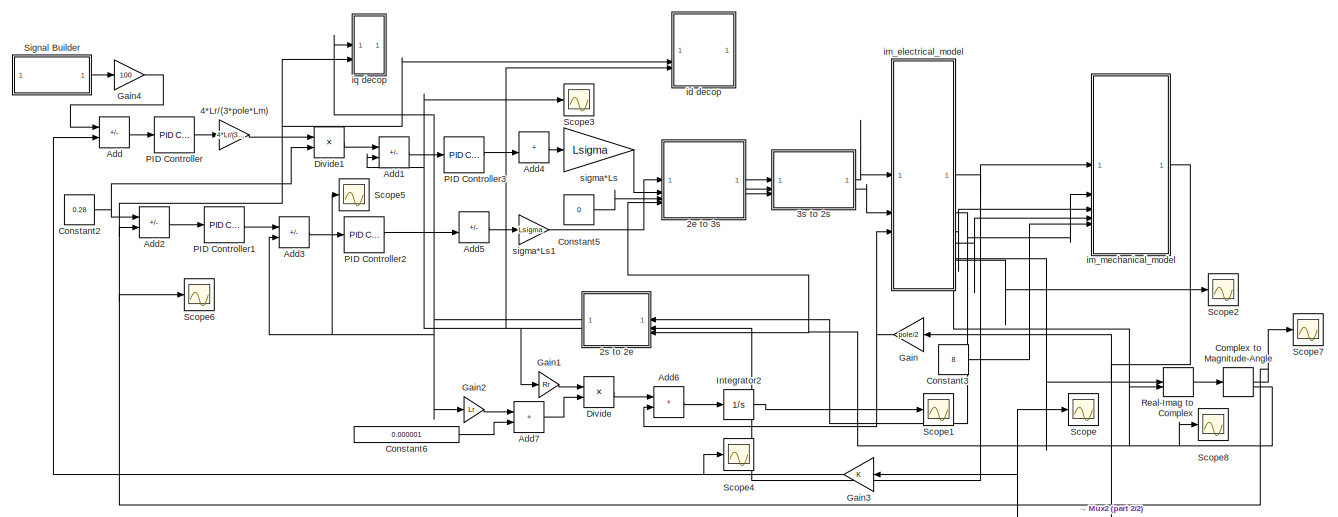
[diagram: root canvas - part 1/2, full width, top band]
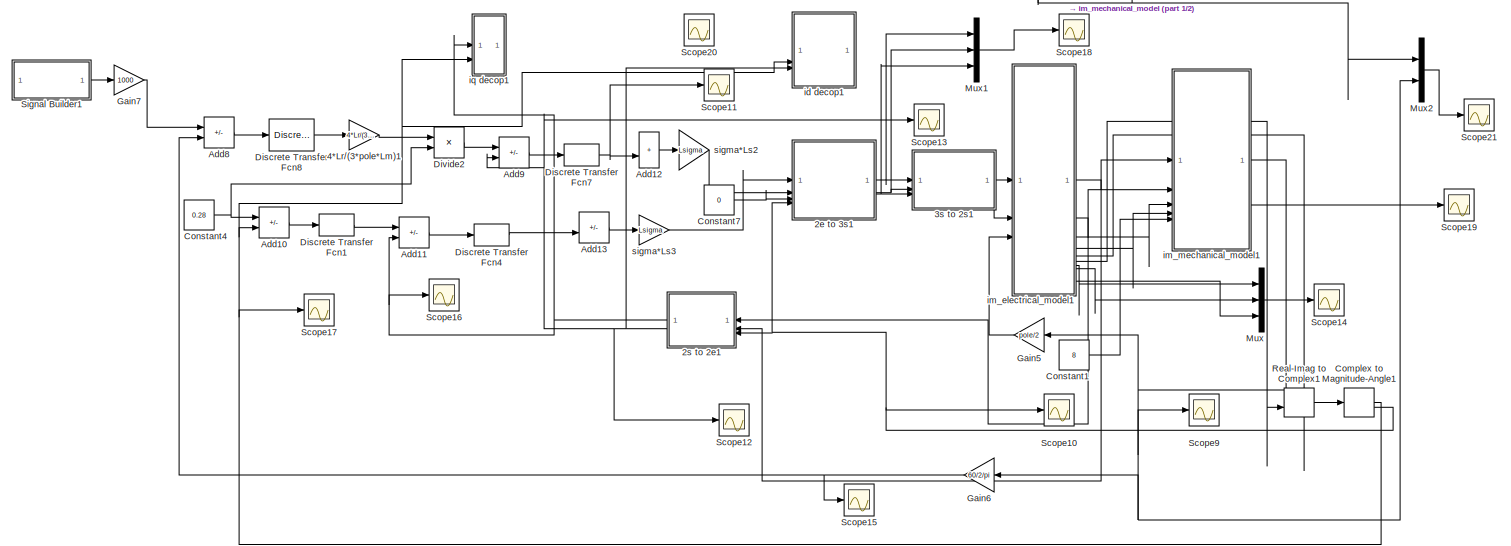
[diagram: root canvas - part 2/2, full width, bottom band]
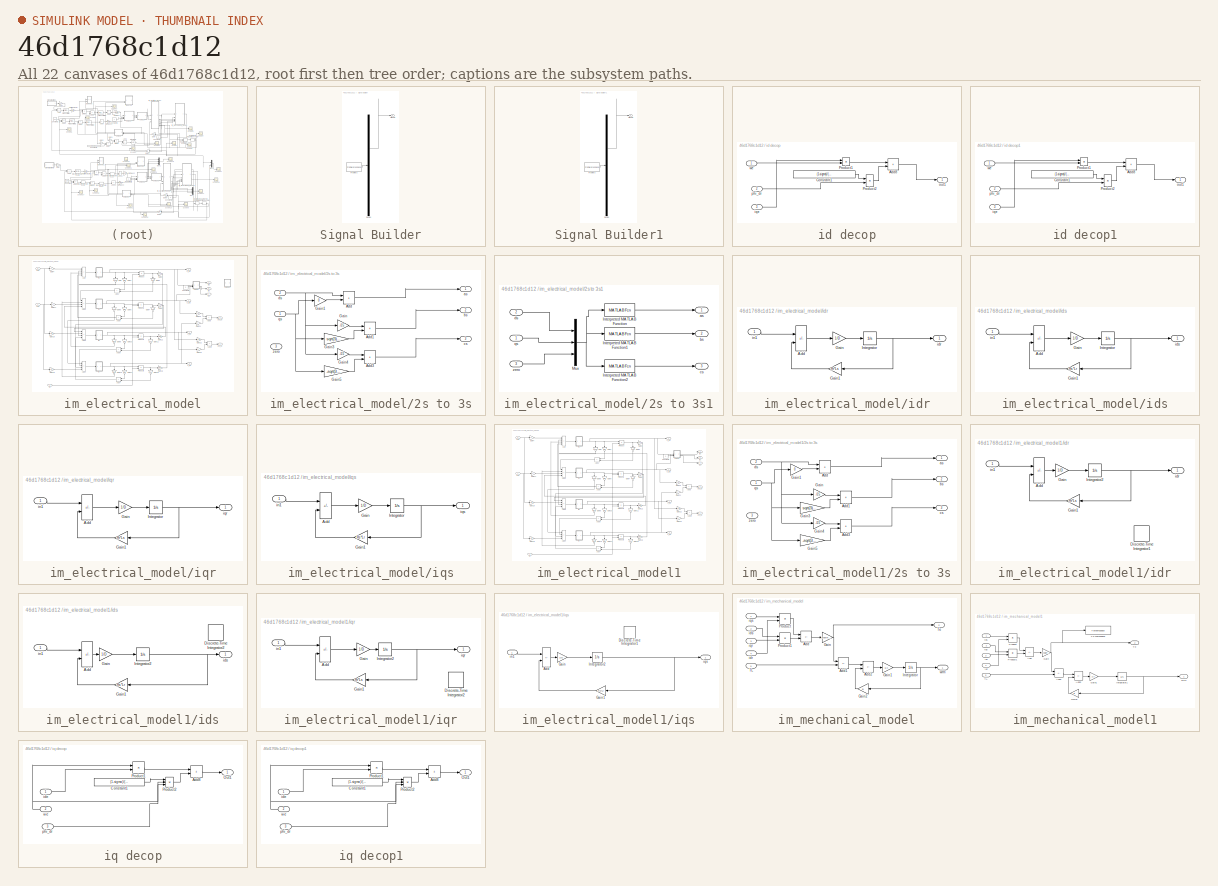
[diagram: thumbnail index - all 22 canvases of the model, root first then tree order]
MODEL slx_46d1768c1d12
KIND model
CONFIG AbsTol = auto
CONFIG EnableMultiTasking = off
CONFIG FixedStep = auto
CONFIG MaxStep = 1e-4
CONFIG MinStep = 1e-5
CONFIG RelTol = 1e-4
CONFIG SampleTimeConstraint = Unconstrained
CONFIG SolverName = ode45
CONFIG StartTime = 0.0
CONFIG StopTime = 1
BLOCK [SubSystem] 2e to 3s
  PortSchema = {"entries":[{"content":{"sides":[{"content":{"connectorIds":["In2","In1","In3","In4"]},"type":"ConnectorPlacement.EquallySpacedRectSide","uuid":"f133be33-91f9-49ed-9811-9ea3b8c2cc59"},{"content":{"connectorIds":["Out1","Out2","Out3"],"side":"RIGHT"},"type":"ConnectorPlacement.EquallySpacedRectSide","uuid":"fabe9076-6ecf-4b28-bd28-ced1febe4377"},{"content":{"connectorIds":[],"side":"TOP"},"type":"C...<+272ch>
  ReferencedSubsystem = s2e_to_3s
BLOCK [SubSystem] 2e to 3s1
  PortSchema = {"entries":[{"content":{"sides":[{"content":{"connectorIds":["In2","In1","In3","In4"]},"type":"ConnectorPlacement.EquallySpacedRectSide","uuid":"f133be33-91f9-49ed-9811-9ea3b8c2cc59"},{"content":{"connectorIds":["Out1","Out2","Out3"],"side":"RIGHT"},"type":"ConnectorPlacement.EquallySpacedRectSide","uuid":"fabe9076-6ecf-4b28-bd28-ced1febe4377"},{"content":{"connectorIds":[],"side":"TOP"},"type":"C...<+272ch>
  ReferencedSubsystem = s2e_to_3s
BLOCK [SubSystem] 2s to 2e
  NameLocation = top
  ReferencedSubsystem = s2s22e
BLOCK [SubSystem] 2s to 2e1
  NameLocation = top
  ReferencedSubsystem = s2s22e
BLOCK [SubSystem] 3s to 2s
  ReferencedSubsystem = s3s_to_2s
BLOCK [SubSystem] 3s to 2s1
  ReferencedSubsystem = s3s_to_2s
BLOCK [Gain] 4*Lr//(3*pole*Lm)
  Gain = 4*Lr/(3*pole*Lm)
BLOCK [Gain] 4*Lr//(3*pole*Lm)1
  Gain = 4*Lr/(3*pole*Lm)
BLOCK [Sum] Add
  IconShape = rectangular
  Inputs = +-
BLOCK [Sum] Add1
  IconShape = rectangular
  Inputs = +-
BLOCK [Sum] Add10
  IconShape = rectangular
  Inputs = +-
BLOCK [Sum] Add11
  IconShape = rectangular
  Inputs = +-
BLOCK [Sum] Add12
  IconShape = rectangular
BLOCK [Sum] Add13
  IconShape = rectangular
  Inputs = -+
BLOCK [Sum] Add2
  IconShape = rectangular
  Inputs = +-
BLOCK [Sum] Add3
  IconShape = rectangular
  Inputs = +-
BLOCK [Sum] Add4
  IconShape = rectangular
BLOCK [Sum] Add5
  IconShape = rectangular
  Inputs = -+
BLOCK [Sum] Add6
  IconShape = rectangular
BLOCK [Sum] Add7
  IconShape = rectangular
BLOCK [Sum] Add8
  IconShape = rectangular
  Inputs = +-
BLOCK [Sum] Add9
  IconShape = rectangular
  Inputs = +-
BLOCK [ComplexToMagnitudeAngle] Complex to Magnitude-Angle
BLOCK [ComplexToMagnitudeAngle] Complex to Magnitude-Angle1
BLOCK [Constant] Constant1
  Value = 8
BLOCK [Constant] Constant2
  Value = 0.28
BLOCK [Constant] Constant3
  Value = 8
BLOCK [Constant] Constant4
  Value = 0.28
BLOCK [Constant] Constant5
  Value = 0
BLOCK [Constant] Constant6
  Value = 0.000001
BLOCK [Constant] Constant7
  Value = 0
BLOCK [DiscreteTransferFcn] Discrete Transfer Fcn1
  Denominator = [1 -1]
  InputPortMap = u0
  Numerator = [10.03575 -9.96425]
  SampleTime = 0.001
BLOCK [DiscreteTransferFcn] Discrete Transfer Fcn4
  Denominator = [1 -1]
  InputPortMap = u0
  Numerator = [105.95 -94.05]
  SampleTime = 0.001
BLOCK [DiscreteTransferFcn] Discrete Transfer Fcn7
  Denominator = [1 -1]
  InputPortMap = u0
  Numerator = [105.95 -94.05]
  SampleTime = 0.001
BLOCK [DiscreteTransferFcn] Discrete Transfer Fcn8
  Denominator = [1 -1]
  InputPortMap = u0
  Numerator = [10.00125 -9.99875]
  SampleTime = 0.001
BLOCK [Product] Divide
  Inputs = */
BLOCK [Product] Divide1
  Inputs = */
BLOCK [Product] Divide2
  Inputs = */
BLOCK [Gain] Gain
  Gain = pole/2
  NameLocation = top
BLOCK [Gain] Gain1
  Gain = Rr
BLOCK [Gain] Gain2
  Gain = Lr
BLOCK [Gain] Gain3
  NameLocation = top
BLOCK [Gain] Gain4
  Gain = 100
BLOCK [Gain] Gain5
  Gain = pole/2
  NameLocation = top
BLOCK [Gain] Gain6
  Gain = 60/2/pi
  NameLocation = top
BLOCK [Gain] Gain7
  Gain = 1000
BLOCK [Integrator] Integrator2
BLOCK [Mux] Mux
  DisplayOption = bar
  Inputs = 3
BLOCK [Mux] Mux1
  DisplayOption = bar
  Inputs = 3
BLOCK [Mux] Mux2
  DisplayOption = bar
  Inputs = 2
BLOCK [Reference] PID Controller  REF=slpidlib/PID Controller
  LibrarySourceBlock = simulink/Continuous/PID Controller
  SourceBlock = slpidlib/PID Controller
  SourceType = PID 1dof
BLOCK [Reference] PID Controller1  REF=slpidlib/PID Controller
  LibrarySourceBlock = simulink/Continuous/PID Controller
  SourceBlock = slpidlib/PID Controller
  SourceType = PID 1dof
BLOCK [Reference] PID Controller2  REF=slpidlib/PID Controller
  LibrarySourceBlock = simulink/Continuous/PID Controller
  SourceBlock = slpidlib/PID Controller
  SourceType = PID 1dof
BLOCK [Reference] PID Controller3  REF=slpidlib/PID Controller
  LibrarySourceBlock = simulink/Continuous/PID Controller
  SourceBlock = slpidlib/PID Controller
  SourceType = PID 1dof
BLOCK [RealImagToComplex] Real-Imag to Complex
BLOCK [RealImagToComplex] Real-Imag to Complex1
BLOCK [Scope] Scope
  Floating = off
  NumInputPorts = 1
  ScopeSpecificationString = Simulink.scopes.TimeScopeBlockCfg('CurrentConfiguration', extmgr.ConfigurationSet(extmgr.Configuration('Core','General UI',true),extmgr.Configuration('Core','Source UI',true),extmgr.Configuration('Sources','WiredSimulink',true),extmgr.Configuration('Visuals','Time Domain',true,'SerializedDisplays',{struct('MinYLimReal','-16.64565','MaxYLimReal','113.23961','YLabelReal','','MinYLimMag','0.00000','M...<+1424ch>
BLOCK [Scope] Scope1
  Floating = off
  NumInputPorts = 1
  ScopeSpecificationString = Simulink.scopes.TimeScopeBlockCfg('CurrentConfiguration', extmgr.ConfigurationSet(extmgr.Configuration('Core','General UI',true),extmgr.Configuration('Core','Source UI',true),extmgr.Configuration('Sources','WiredSimulink',true,'DataLoggingVariableName','ScopeData1'),extmgr.Configuration('Visuals','Time Domain',true,'SerializedDisplays',{struct('MinYLimReal','-66.41647','MaxYLimReal','597.74823','Y...<+1405ch>
BLOCK [Scope] Scope10
  Floating = off
  NumInputPorts = 1
  ScopeSpecificationString = Simulink.scopes.TimeScopeBlockCfg('CurrentConfiguration', extmgr.ConfigurationSet(extmgr.Configuration('Core','General UI',true),extmgr.Configuration('Core','Source UI',true),extmgr.Configuration('Sources','WiredSimulink',true,'DataLoggingVariableName','ScopeData6'),extmgr.Configuration('Visuals','Time Domain',true,'SerializedDisplays',{struct('MinYLimReal','-3.91934','MaxYLimReal','3.92215','YLab...<+1460ch>
BLOCK [Scope] Scope11
  Floating = off
  NumInputPorts = 1
  ScopeSpecificationString = Simulink.scopes.TimeScopeBlockCfg('CurrentConfiguration', extmgr.ConfigurationSet(extmgr.Configuration('Core','General UI',true),extmgr.Configuration('Core','Source UI',true),extmgr.Configuration('Sources','WiredSimulink',true,'DataLoggingVariableName','ScopeData7'),extmgr.Configuration('Visuals','Time Domain',true,'SerializedDisplays',{struct('MinYLimReal','-1130.29337','MaxYLimReal','13052.58381...<+1515ch>
BLOCK [Scope] Scope12
  Floating = off
  NumInputPorts = 1
  ScopeSpecificationString = Simulink.scopes.TimeScopeBlockCfg('CurrentConfiguration', extmgr.ConfigurationSet(extmgr.Configuration('Core','General UI',true),extmgr.Configuration('Core','Source UI',true),extmgr.Configuration('Sources','WiredSimulink',true,'DataLoggingVariableName','ScopeData8'),extmgr.Configuration('Visuals','Time Domain',true,'SerializedDisplays',{struct('MinYLimReal','-51.17277','MaxYLimReal','106.77575','Y...<+1453ch>
BLOCK [Scope] Scope13
  Floating = off
  NumInputPorts = 1
  ScopeSpecificationString = Simulink.scopes.TimeScopeBlockCfg('CurrentConfiguration', extmgr.ConfigurationSet(extmgr.Configuration('Core','General UI',true),extmgr.Configuration('Core','Source UI',true),extmgr.Configuration('Sources','WiredSimulink',true,'DataLoggingVariableName','ScopeData9'),extmgr.Configuration('Visuals','Time Domain',true,'SerializedDisplays',{struct('MinYLimReal','-33.53928','MaxYLimReal','96.88126','YL...<+1448ch>
BLOCK [Scope] Scope14
  Floating = off
  NumInputPorts = 1
  ScopeSpecificationString = Simulink.scopes.TimeScopeBlockCfg('CurrentConfiguration', extmgr.ConfigurationSet(extmgr.Configuration('Core','General UI',true),extmgr.Configuration('Core','Source UI',true),extmgr.Configuration('Sources','WiredSimulink',true,'DataLoggingVariableName','ScopeData10'),extmgr.Configuration('Visuals','Time Domain',true,'SerializedDisplays',{struct('MinYLimReal','-21.13064','MaxYLimReal','26.33431','Y...<+1511ch>
BLOCK [Scope] Scope15
  Floating = off
  NumInputPorts = 1
  ScopeSpecificationString = Simulink.scopes.TimeScopeBlockCfg('CurrentConfiguration', extmgr.ConfigurationSet(extmgr.Configuration('Core','General UI',true),extmgr.Configuration('Core','Source UI',true),extmgr.Configuration('Sources','WiredSimulink',true,'DataLoggingVariableName','ScopeData11'),extmgr.Configuration('Visuals','Time Domain',true,'SerializedDisplays',{struct('MinYLimReal','-140.85513','MaxYLimReal','1130.62898'...<+1483ch>
BLOCK [Scope] Scope16
  Floating = off
  NumInputPorts = 1
  ScopeSpecificationString = Simulink.scopes.TimeScopeBlockCfg('CurrentConfiguration', extmgr.ConfigurationSet(extmgr.Configuration('Core','General UI',true),extmgr.Configuration('Core','Source UI',true),extmgr.Configuration('Sources','WiredSimulink',true,'DataLoggingVariableName','ScopeData12'),extmgr.Configuration('Visuals','Time Domain',true,'SerializedDisplays',{struct('MinYLimReal','-16.0104','MaxYLimReal','27.2939','YLa...<+1443ch>
BLOCK [Scope] Scope17
  Floating = off
  NumInputPorts = 1
  ScopeSpecificationString = Simulink.scopes.TimeScopeBlockCfg('CurrentConfiguration', extmgr.ConfigurationSet(extmgr.Configuration('Core','General UI',true),extmgr.Configuration('Core','Source UI',true),extmgr.Configuration('Sources','WiredSimulink',true,'DataLoggingVariableName','ScopeData13'),extmgr.Configuration('Visuals','Time Domain',true,'SerializedDisplays',{struct('MinYLimReal','-0.04304','MaxYLimReal','0.38737','YLa...<+1462ch>
BLOCK [Scope] Scope18
  Floating = off
  NumInputPorts = 1
  ScopeSpecificationString = Simulink.scopes.TimeScopeBlockCfg('CurrentConfiguration', extmgr.ConfigurationSet(extmgr.Configuration('Core','General UI',true),extmgr.Configuration('Core','Source UI',true),extmgr.Configuration('Sources','WiredSimulink',true,'DataLoggingVariableName','ScopeData14'),extmgr.Configuration('Visuals','Time Domain',true,'SerializedDisplays',{struct('MinYLimReal','-107.74368','MaxYLimReal','73.48807','...<+1480ch>
BLOCK [Scope] Scope19
  Floating = off
  NumInputPorts = 1
  ScopeSpecificationString = Simulink.scopes.TimeScopeBlockCfg('CurrentConfiguration', extmgr.ConfigurationSet(extmgr.Configuration('Core','General UI',true),extmgr.Configuration('Core','Source UI',true),extmgr.Configuration('Sources','WiredSimulink',true,'DataLoggingVariableName','ScopeData15'),extmgr.Configuration('Visuals','Time Domain',true,'SerializedDisplays',{struct('MinYLimReal','7.66641','MaxYLimReal','9.38072','YLab...<+1453ch>
BLOCK [Scope] Scope2
  Floating = off
  NumInputPorts = 1
  ScopeSpecificationString = Simulink.scopes.TimeScopeBlockCfg('CurrentConfiguration', extmgr.ConfigurationSet(extmgr.Configuration('Core','General UI',true),extmgr.Configuration('Core','Source UI',true),extmgr.Configuration('Sources','WiredSimulink',true,'DataLoggingVariableName','ScopeData2'),extmgr.Configuration('Visuals','Time Domain',true,'SerializedDisplays',{struct('MinYLimReal','-15.96767','MaxYLimReal','16.52541','YL...<+1459ch>
BLOCK [Scope] Scope20
  Floating = off
  NumInputPorts = 1
  ScopeSpecificationString = Simulink.scopes.TimeScopeBlockCfg('CurrentConfiguration', extmgr.ConfigurationSet(extmgr.Configuration('Core','General UI',true),extmgr.Configuration('Core','Source UI',true),extmgr.Configuration('Sources','WiredSimulink',true,'DataLoggingVariableName','ScopeData16'),extmgr.Configuration('Visuals','Time Domain',true,'SerializedDisplays',{struct('MinYLimReal','6166.69425','MaxYLimReal','9091.88861'...<+1463ch>
BLOCK [Scope] Scope21
  Floating = off
  NumInputPorts = 1
  ScopeSpecificationString = Simulink.scopes.TimeScopeBlockCfg('CurrentConfiguration', extmgr.ConfigurationSet(extmgr.Configuration('Core','General UI',true),extmgr.Configuration('Core','Source UI',true),extmgr.Configuration('Sources','WiredSimulink',true,'DataLoggingVariableName','ScopeData18'),extmgr.Configuration('Visuals','Time Domain',true,'SerializedDisplays',{struct('MinYLimReal','-16.60489','MaxYLimReal','113.28447','...<+1488ch>
BLOCK [Scope] Scope3
  Floating = off
  NumInputPorts = 1
  ScopeSpecificationString = Simulink.scopes.TimeScopeBlockCfg('CurrentConfiguration', extmgr.ConfigurationSet(extmgr.Configuration('Core','General UI',true),extmgr.Configuration('Core','Source UI',true),extmgr.Configuration('Sources','WiredSimulink',true,'DataLoggingVariableName','ScopeData1'),extmgr.Configuration('Visuals','Time Domain',true,'SerializedDisplays',{struct('MinYLimReal','-6.77916','MaxYLimReal','61.01231','YLa...<+1446ch>
BLOCK [Scope] Scope4
  Floating = off
  NumInputPorts = 1
  ScopeSpecificationString = Simulink.scopes.TimeScopeBlockCfg('CurrentConfiguration', extmgr.ConfigurationSet(extmgr.Configuration('Core','General UI',true),extmgr.Configuration('Core','Source UI',true),extmgr.Configuration('Sources','WiredSimulink',true,'DataLoggingVariableName','ScopeData4'),extmgr.Configuration('Visuals','Time Domain',true,'SerializedDisplays',{struct('MinYLimReal','-749.46689','MaxYLimReal','2410.54703',...<+1436ch>
BLOCK [Scope] Scope5
  Floating = off
  NumInputPorts = 1
  ScopeSpecificationString = Simulink.scopes.TimeScopeBlockCfg('CurrentConfiguration', extmgr.ConfigurationSet(extmgr.Configuration('Core','General UI',true),extmgr.Configuration('Core','Source UI',true),extmgr.Configuration('Sources','WiredSimulink',true,'DataLoggingVariableName','ScopeData2'),extmgr.Configuration('Visuals','Time Domain',true,'SerializedDisplays',{struct('MinYLimReal','-13.83751','MaxYLimReal','25.43451','YL...<+1448ch>
BLOCK [Scope] Scope6
  Floating = off
  NumInputPorts = 1
  ScopeSpecificationString = Simulink.scopes.TimeScopeBlockCfg('CurrentConfiguration', extmgr.ConfigurationSet(extmgr.Configuration('Core','General UI',true),extmgr.Configuration('Core','Source UI',true),extmgr.Configuration('Sources','WiredSimulink',true,'DataLoggingVariableName','ScopeData3'),extmgr.Configuration('Visuals','Time Domain',true,'SerializedDisplays',{struct('MinYLimReal','-0.0384','MaxYLimReal','0.34562','YLabe...<+1458ch>
BLOCK [Scope] Scope7
  Floating = off
  NumInputPorts = 1
  ScopeSpecificationString = Simulink.scopes.TimeScopeBlockCfg('CurrentConfiguration', extmgr.ConfigurationSet(extmgr.Configuration('Core','General UI',true),extmgr.Configuration('Core','Source UI',true),extmgr.Configuration('Sources','WiredSimulink',true,'DataLoggingVariableName','ScopeData4'),extmgr.Configuration('Visuals','Time Domain',true,'SerializedDisplays',{struct('MinYLimReal','-0.28265','MaxYLimReal','2.54387','YLab...<+1460ch>
BLOCK [Scope] Scope8
  Floating = off
  NumInputPorts = 1
  ScopeSpecificationString = Simulink.scopes.TimeScopeBlockCfg('CurrentConfiguration', extmgr.ConfigurationSet(extmgr.Configuration('Core','General UI',true),extmgr.Configuration('Core','Source UI',true),extmgr.Configuration('Sources','WiredSimulink',true,'DataLoggingVariableName','ScopeData5'),extmgr.Configuration('Visuals','Time Domain',true,'SerializedDisplays',{struct('MinYLimReal','-3.92662','MaxYLimReal','3.92681','YLab...<+1412ch>
BLOCK [Scope] Scope9
  Floating = off
  NumInputPorts = 1
  ScopeSpecificationString = Simulink.scopes.TimeScopeBlockCfg('CurrentConfiguration', extmgr.ConfigurationSet(extmgr.Configuration('Core','General UI',true),extmgr.Configuration('Core','Source UI',true),extmgr.Configuration('Sources','WiredSimulink',true,'DataLoggingVariableName','ScopeData17'),extmgr.Configuration('Visuals','Time Domain',true,'SerializedDisplays',{struct('MinYLimReal','-14.75031','MaxYLimReal','118.39919','...<+1446ch>
BLOCK [SubSystem] Signal Builder
  ClipboardFcn = sigbuilder_block('clipboard');
  CloseFcn = sigbuilder_block('close');
  ContinueFcn = sigbuilder_block('continue');
  CopyFcn = sigbuilder_block('copy');
  DeleteFcn = sigbuilder_block('delete');
  LoadFcn = sigbuilder_block('load');
  MaskHideContents = on
  ModelCloseFcn = sigbuilder_block('modelClose');
  NameChangeFcn = sigbuilder_block('namechange');
  OpenFcn = sigbuilder_block('open',[437.6 199.2 550.4 400 ]);
  PauseFcn = sigbuilder_block('pause');
  PreSaveFcn = sigbuilder_block('preSave');
  StartFcn = sigbuilder_block('start');
  StopFcn = sigbuilder_block('stop');
  Tag = STV Subsys
BLOCK [Demux] Signal Builder/Demux
  DisplayOption = none
  Outputs = 1
  Tag = STV Demux
BLOCK [FromWorkspace] Signal Builder/FromWs
  Tag = STV FromWs
  VariableName = tuvar
BLOCK [Outport] Signal Builder/Signal 1
  Tag = STV Outport
BLOCK [SubSystem] Signal Builder1
  ClipboardFcn = sigbuilder_block('clipboard');
  CloseFcn = sigbuilder_block('close');
  ContinueFcn = sigbuilder_block('continue');
  CopyFcn = sigbuilder_block('copy');
  DeleteFcn = sigbuilder_block('delete');
  LoadFcn = sigbuilder_block('load');
  MaskHideContents = on
  ModelCloseFcn = sigbuilder_block('modelClose');
  NameChangeFcn = sigbuilder_block('namechange');
  OpenFcn = sigbuilder_block('open',[437.6 199.2 550.4 400 ]);
  PauseFcn = sigbuilder_block('pause');
  PreSaveFcn = sigbuilder_block('preSave');
  StartFcn = sigbuilder_block('start');
  StopFcn = sigbuilder_block('stop');
  Tag = STV Subsys
BLOCK [Demux] Signal Builder1/Demux
  DisplayOption = none
  Outputs = 1
  Tag = STV Demux
BLOCK [FromWorkspace] Signal Builder1/FromWs
  Tag = STV FromWs
  VariableName = tuvar
BLOCK [Outport] Signal Builder1/Signal 1
  Tag = STV Outport
BLOCK [SubSystem] id decop
BLOCK [Sum] id decop/Add8
  IconShape = rectangular
BLOCK [Constant] id decop/Constant1
  Value = (1-sigma)/(sigma*Tr*Lm)
BLOCK [Product] id decop/Product1
BLOCK [Product] id decop/Product2
BLOCK [Inport] id decop/iqe
  Port = 3
BLOCK [Outport] id decop/out1
BLOCK [Inport] id decop/phi_dr
  Port = 2
BLOCK [Inport] id decop/we
BLOCK [SubSystem] id decop1
BLOCK [Sum] id decop1/Add8
  IconShape = rectangular
BLOCK [Constant] id decop1/Constant1
  Value = (1-sigma)/(sigma*Tr*Lm)
BLOCK [Product] id decop1/Product1
BLOCK [Product] id decop1/Product2
BLOCK [Inport] id decop1/iqe
  Port = 3
BLOCK [Outport] id decop1/out1
BLOCK [Inport] id decop1/phi_dr
  Port = 2
BLOCK [Inport] id decop1/we
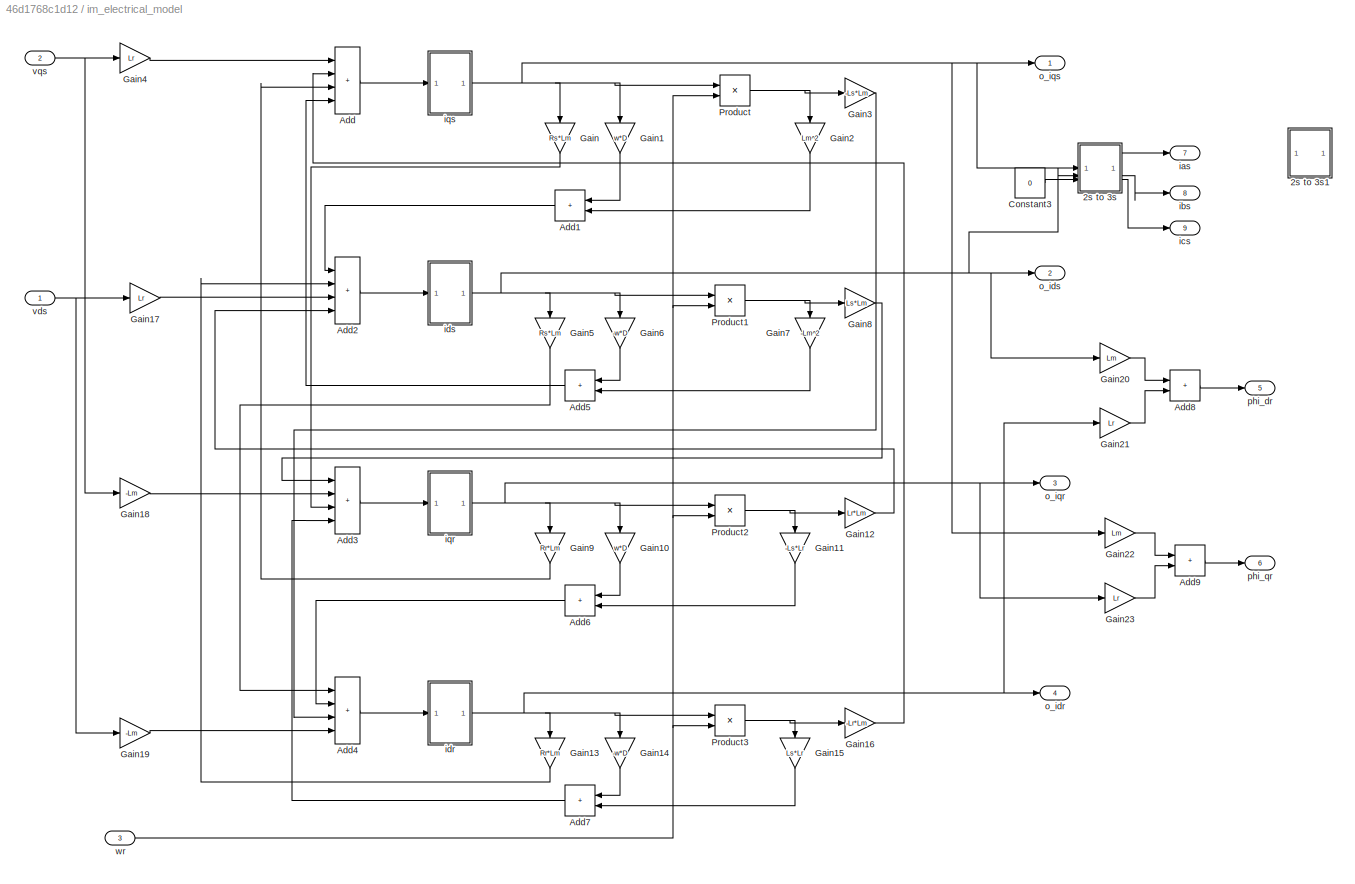
BLOCK [SubSystem] im_electrical_model
BLOCK [SubSystem] im_electrical_model/2s to 3s
BLOCK [Sum] im_electrical_model/2s to 3s/Add
  IconShape = rectangular
BLOCK [Sum] im_electrical_model/2s to 3s/Add1
  IconShape = rectangular
BLOCK [Sum] im_electrical_model/2s to 3s/Add3
  IconShape = rectangular
BLOCK [Gain] im_electrical_model/2s to 3s/Gain
  Gain = -0.5
BLOCK [Gain] im_electrical_model/2s to 3s/Gain1
  Gain = 0
BLOCK [Gain] im_electrical_model/2s to 3s/Gain3
  Gain = sqrt(3)/2
BLOCK [Gain] im_electrical_model/2s to 3s/Gain4
  Gain = -0.5
BLOCK [Gain] im_electrical_model/2s to 3s/Gain5
  Gain = -sqrt(3)/2
BLOCK [Outport] im_electrical_model/2s to 3s/as
BLOCK [Outport] im_electrical_model/2s to 3s/bs
  Port = 2
BLOCK [Outport] im_electrical_model/2s to 3s/cs
  Port = 3
BLOCK [Inport] im_electrical_model/2s to 3s/ds
  Port = 2
BLOCK [Inport] im_electrical_model/2s to 3s/qs
BLOCK [Inport] im_electrical_model/2s to 3s/zero
  Port = 3
BLOCK [SubSystem] im_electrical_model/2s to 3s1
BLOCK [MATLABFcn] im_electrical_model/2s to 3s1/Interpreted MATLAB Function
  MATLABFcn = u(1)+u(3)
BLOCK [MATLABFcn] im_electrical_model/2s to 3s1/Interpreted MATLAB Function1
  MATLABFcn = -0.5*u(1)+sqrt(3)/2*u(2)+u(3)
BLOCK [MATLABFcn] im_electrical_model/2s to 3s1/Interpreted MATLAB Function2
  MATLABFcn = -0.5*u(1)-sqrt(3)/2*u(2)+u(3)
BLOCK [Mux] im_electrical_model/2s to 3s1/Mux
  DisplayOption = bar
  Inputs = 3
BLOCK [Outport] im_electrical_model/2s to 3s1/as
BLOCK [Outport] im_electrical_model/2s to 3s1/bs
  Port = 2
BLOCK [Outport] im_electrical_model/2s to 3s1/cs
  Port = 3
BLOCK [Inport] im_electrical_model/2s to 3s1/ds
  Port = 2
BLOCK [Inport] im_electrical_model/2s to 3s1/qs
BLOCK [Inport] im_electrical_model/2s to 3s1/zero
  Port = 3
BLOCK [Sum] im_electrical_model/Add
  IconShape = rectangular
  Inputs = ++++
BLOCK [Sum] im_electrical_model/Add1
  IconShape = rectangular
  NameLocation = top
BLOCK [Sum] im_electrical_model/Add2
  IconShape = rectangular
  Inputs = ++++
BLOCK [Sum] im_electrical_model/Add3
  IconShape = rectangular
  Inputs = ++++
BLOCK [Sum] im_electrical_model/Add4
  IconShape = rectangular
  Inputs = ++++
BLOCK [Sum] im_electrical_model/Add5
  IconShape = rectangular
  NameLocation = top
BLOCK [Sum] im_electrical_model/Add6
  IconShape = rectangular
  NameLocation = top
BLOCK [Sum] im_electrical_model/Add7
  IconShape = rectangular
  NameLocation = top
BLOCK [Sum] im_electrical_model/Add8
  IconShape = rectangular
BLOCK [Sum] im_electrical_model/Add9
  IconShape = rectangular
BLOCK [Constant] im_electrical_model/Constant3
  Value = 0
BLOCK [Gain] im_electrical_model/Gain
  Gain = Rs*Lm
  NameLocation = left
BLOCK [Gain] im_electrical_model/Gain1
  Gain = w*D
  NameLocation = left
BLOCK [Gain] im_electrical_model/Gain10
  Gain = w*D
  NameLocation = left
BLOCK [Gain] im_electrical_model/Gain11
  Gain = -Ls*Lr
  NameLocation = left
BLOCK [Gain] im_electrical_model/Gain12
  Gain = Lr*Lm
BLOCK [Gain] im_electrical_model/Gain13
  Gain = Rr*Lm
  NameLocation = left
BLOCK [Gain] im_electrical_model/Gain14
  Gain = -w*D
  NameLocation = left
BLOCK [Gain] im_electrical_model/Gain15
  Gain = Ls*Lr
  NameLocation = left
BLOCK [Gain] im_electrical_model/Gain16
  Gain = -Lr*Lm
BLOCK [Gain] im_electrical_model/Gain17
  Gain = Lr
BLOCK [Gain] im_electrical_model/Gain18
  Gain = -Lm
BLOCK [Gain] im_electrical_model/Gain19
  Gain = -Lm
BLOCK [Gain] im_electrical_model/Gain2
  Gain = Lm^2
  NameLocation = left
BLOCK [Gain] im_electrical_model/Gain20
  Gain = Lm
BLOCK [Gain] im_electrical_model/Gain21
  Gain = Lr
BLOCK [Gain] im_electrical_model/Gain22
  Gain = Lm
BLOCK [Gain] im_electrical_model/Gain23
  Gain = Lr
BLOCK [Gain] im_electrical_model/Gain3
  Gain = -Ls*Lm
BLOCK [Gain] im_electrical_model/Gain4
  Gain = Lr
BLOCK [Gain] im_electrical_model/Gain5
  Gain = Rs*Lm
  NameLocation = left
BLOCK [Gain] im_electrical_model/Gain6
  Gain = -w*D
  NameLocation = left
BLOCK [Gain] im_electrical_model/Gain7
  Gain = -Lm^2
  NameLocation = left
BLOCK [Gain] im_electrical_model/Gain8
  Gain = Ls*Lm
BLOCK [Gain] im_electrical_model/Gain9
  Gain = Rr*Lm
  NameLocation = left
BLOCK [Product] im_electrical_model/Product
BLOCK [Product] im_electrical_model/Product1
BLOCK [Product] im_electrical_model/Product2
BLOCK [Product] im_electrical_model/Product3
BLOCK [Outport] im_electrical_model/ias
  Port = 7
BLOCK [Outport] im_electrical_model/ibs
  Port = 8
BLOCK [Outport] im_electrical_model/ics
  Port = 9
BLOCK [SubSystem] im_electrical_model/idr
BLOCK [Sum] im_electrical_model/idr/Add
  IconShape = rectangular
  Inputs = +-
BLOCK [Gain] im_electrical_model/idr/Gain
  Gain = 1/D
BLOCK [Gain] im_electrical_model/idr/Gain1
  Gain = Rr*Ls
  NameLocation = top
BLOCK [Integrator] im_electrical_model/idr/Integrator
BLOCK [Outport] im_electrical_model/idr/idr
BLOCK [Inport] im_electrical_model/idr/in1
BLOCK [SubSystem] im_electrical_model/ids
BLOCK [Sum] im_electrical_model/ids/Add
  IconShape = rectangular
  Inputs = +-
BLOCK [Gain] im_electrical_model/ids/Gain
  Gain = 1/D
BLOCK [Gain] im_electrical_model/ids/Gain1
  Gain = Rs*Lr
  NameLocation = top
BLOCK [Integrator] im_electrical_model/ids/Integrator
BLOCK [Outport] im_electrical_model/ids/ids
BLOCK [Inport] im_electrical_model/ids/in1
BLOCK [SubSystem] im_electrical_model/iqr
BLOCK [Sum] im_electrical_model/iqr/Add
  IconShape = rectangular
  Inputs = +-
BLOCK [Gain] im_electrical_model/iqr/Gain
  Gain = 1/D
BLOCK [Gain] im_electrical_model/iqr/Gain1
  Gain = Rr*Ls
  NameLocation = top
BLOCK [Integrator] im_electrical_model/iqr/Integrator
BLOCK [Inport] im_electrical_model/iqr/in1
BLOCK [Outport] im_electrical_model/iqr/iqr
BLOCK [SubSystem] im_electrical_model/iqs
BLOCK [Sum] im_electrical_model/iqs/Add
  IconShape = rectangular
  Inputs = +-
BLOCK [Gain] im_electrical_model/iqs/Gain
  Gain = 1/D
BLOCK [Gain] im_electrical_model/iqs/Gain1
  Gain = Rs*Lr
  NameLocation = top
BLOCK [Integrator] im_electrical_model/iqs/Integrator
BLOCK [Inport] im_electrical_model/iqs/in1
BLOCK [Outport] im_electrical_model/iqs/iqs
BLOCK [Outport] im_electrical_model/o_idr
  Port = 4
BLOCK [Outport] im_electrical_model/o_ids
  Port = 2
BLOCK [Outport] im_electrical_model/o_iqr
  Port = 3
BLOCK [Outport] im_electrical_model/o_iqs
BLOCK [Outport] im_electrical_model/phi_dr
  Port = 5
BLOCK [Outport] im_electrical_model/phi_qr
  Port = 6
BLOCK [Inport] im_electrical_model/vds
BLOCK [Inport] im_electrical_model/vqs
  Port = 2
BLOCK [Inport] im_electrical_model/wr
  Port = 3
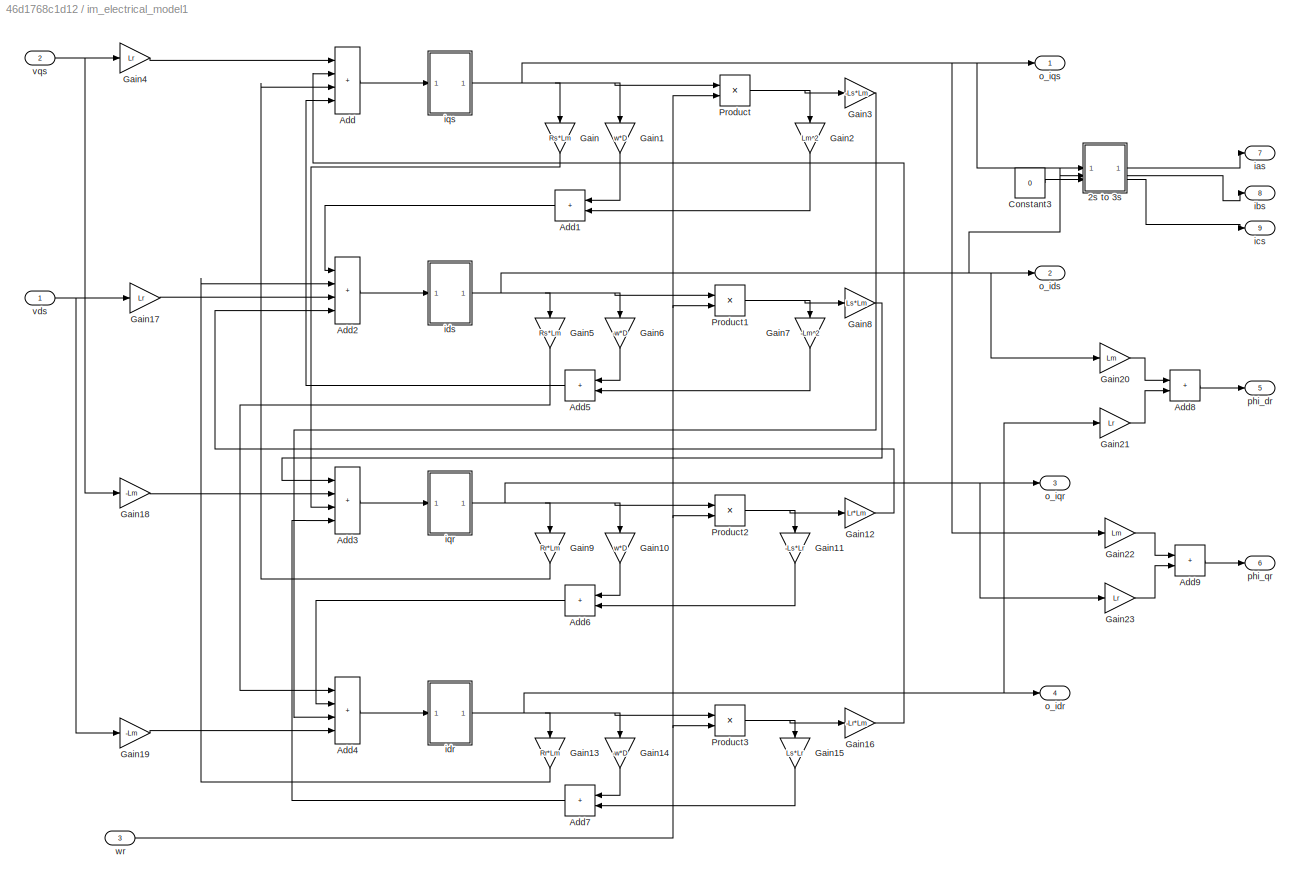
BLOCK [SubSystem] im_electrical_model1
BLOCK [SubSystem] im_electrical_model1/2s to 3s
BLOCK [Sum] im_electrical_model1/2s to 3s/Add
  IconShape = rectangular
BLOCK [Sum] im_electrical_model1/2s to 3s/Add1
  IconShape = rectangular
BLOCK [Sum] im_electrical_model1/2s to 3s/Add3
  IconShape = rectangular
BLOCK [Gain] im_electrical_model1/2s to 3s/Gain
  Gain = -0.5
BLOCK [Gain] im_electrical_model1/2s to 3s/Gain1
  Gain = 0
BLOCK [Gain] im_electrical_model1/2s to 3s/Gain3
  Gain = sqrt(3)/2
BLOCK [Gain] im_electrical_model1/2s to 3s/Gain4
  Gain = -0.5
BLOCK [Gain] im_electrical_model1/2s to 3s/Gain5
  Gain = -sqrt(3)/2
BLOCK [Outport] im_electrical_model1/2s to 3s/as
BLOCK [Outport] im_electrical_model1/2s to 3s/bs
  Port = 2
BLOCK [Outport] im_electrical_model1/2s to 3s/cs
  Port = 3
BLOCK [Inport] im_electrical_model1/2s to 3s/ds
  Port = 2
BLOCK [Inport] im_electrical_model1/2s to 3s/qs
BLOCK [Inport] im_electrical_model1/2s to 3s/zero
  Port = 3
BLOCK [Sum] im_electrical_model1/Add
  IconShape = rectangular
  Inputs = ++++
BLOCK [Sum] im_electrical_model1/Add1
  IconShape = rectangular
  NameLocation = top
BLOCK [Sum] im_electrical_model1/Add2
  IconShape = rectangular
  Inputs = ++++
BLOCK [Sum] im_electrical_model1/Add3
  IconShape = rectangular
  Inputs = ++++
BLOCK [Sum] im_electrical_model1/Add4
  IconShape = rectangular
  Inputs = ++++
BLOCK [Sum] im_electrical_model1/Add5
  IconShape = rectangular
  NameLocation = top
BLOCK [Sum] im_electrical_model1/Add6
  IconShape = rectangular
  NameLocation = top
BLOCK [Sum] im_electrical_model1/Add7
  IconShape = rectangular
  NameLocation = top
BLOCK [Sum] im_electrical_model1/Add8
  IconShape = rectangular
BLOCK [Sum] im_electrical_model1/Add9
  IconShape = rectangular
BLOCK [Constant] im_electrical_model1/Constant3
  Value = 0
BLOCK [Gain] im_electrical_model1/Gain
  Gain = Rs*Lm
  NameLocation = left
BLOCK [Gain] im_electrical_model1/Gain1
  Gain = w*D
  NameLocation = left
BLOCK [Gain] im_electrical_model1/Gain10
  Gain = w*D
  NameLocation = left
BLOCK [Gain] im_electrical_model1/Gain11
  Gain = -Ls*Lr
  NameLocation = left
BLOCK [Gain] im_electrical_model1/Gain12
  Gain = Lr*Lm
BLOCK [Gain] im_electrical_model1/Gain13
  Gain = Rr*Lm
  NameLocation = left
BLOCK [Gain] im_electrical_model1/Gain14
  Gain = -w*D
  NameLocation = left
BLOCK [Gain] im_electrical_model1/Gain15
  Gain = Ls*Lr
  NameLocation = left
BLOCK [Gain] im_electrical_model1/Gain16
  Gain = -Lr*Lm
BLOCK [Gain] im_electrical_model1/Gain17
  Gain = Lr
BLOCK [Gain] im_electrical_model1/Gain18
  Gain = -Lm
BLOCK [Gain] im_electrical_model1/Gain19
  Gain = -Lm
BLOCK [Gain] im_electrical_model1/Gain2
  Gain = Lm^2
  NameLocation = left
BLOCK [Gain] im_electrical_model1/Gain20
  Gain = Lm
BLOCK [Gain] im_electrical_model1/Gain21
  Gain = Lr
BLOCK [Gain] im_electrical_model1/Gain22
  Gain = Lm
BLOCK [Gain] im_electrical_model1/Gain23
  Gain = Lr
BLOCK [Gain] im_electrical_model1/Gain3
  Gain = -Ls*Lm
BLOCK [Gain] im_electrical_model1/Gain4
  Gain = Lr
BLOCK [Gain] im_electrical_model1/Gain5
  Gain = Rs*Lm
  NameLocation = left
BLOCK [Gain] im_electrical_model1/Gain6
  Gain = -w*D
  NameLocation = left
BLOCK [Gain] im_electrical_model1/Gain7
  Gain = -Lm^2
  NameLocation = left
BLOCK [Gain] im_electrical_model1/Gain8
  Gain = Ls*Lm
BLOCK [Gain] im_electrical_model1/Gain9
  Gain = Rr*Lm
  NameLocation = left
BLOCK [Product] im_electrical_model1/Product
BLOCK [Product] im_electrical_model1/Product1
BLOCK [Product] im_electrical_model1/Product2
BLOCK [Product] im_electrical_model1/Product3
BLOCK [Outport] im_electrical_model1/ias
  Port = 7
BLOCK [Outport] im_electrical_model1/ibs
  Port = 8
BLOCK [Outport] im_electrical_model1/ics
  Port = 9
BLOCK [SubSystem] im_electrical_model1/idr
BLOCK [Sum] im_electrical_model1/idr/Add
  IconShape = rectangular
  Inputs = +-
BLOCK [DiscreteIntegrator] im_electrical_model1/idr/Discrete-Time Integrator1
  ICPrevOutput = DiscIntNeverNeededParam
  ICPrevScaledInput = DiscIntNeverNeededParam
  InitialConditionSetting = Auto
  SampleTime = -1
BLOCK [Gain] im_electrical_model1/idr/Gain
  Gain = 1/D
BLOCK [Gain] im_electrical_model1/idr/Gain1
  Gain = Rr*Ls
  NameLocation = top
BLOCK [Integrator] im_electrical_model1/idr/Integrator2
BLOCK [Outport] im_electrical_model1/idr/idr
BLOCK [Inport] im_electrical_model1/idr/in1
BLOCK [SubSystem] im_electrical_model1/ids
BLOCK [Sum] im_electrical_model1/ids/Add
  IconShape = rectangular
  Inputs = +-
BLOCK [DiscreteIntegrator] im_electrical_model1/ids/Discrete-Time Integrator2
  ICPrevOutput = DiscIntNeverNeededParam
  ICPrevScaledInput = DiscIntNeverNeededParam
  InitialConditionSetting = Auto
  SampleTime = -1
BLOCK [Gain] im_electrical_model1/ids/Gain
  Gain = 1/D
BLOCK [Gain] im_electrical_model1/ids/Gain1
  Gain = Rs*Lr
  NameLocation = top
BLOCK [Integrator] im_electrical_model1/ids/Integrator2
BLOCK [Outport] im_electrical_model1/ids/ids
BLOCK [Inport] im_electrical_model1/ids/in1
BLOCK [SubSystem] im_electrical_model1/iqr
BLOCK [Sum] im_electrical_model1/iqr/Add
  IconShape = rectangular
  Inputs = +-
BLOCK [DiscreteIntegrator] im_electrical_model1/iqr/Discrete-Time Integrator2
  ICPrevOutput = DiscIntNeverNeededParam
  ICPrevScaledInput = DiscIntNeverNeededParam
  InitialConditionSetting = Auto
  SampleTime = -1
BLOCK [Gain] im_electrical_model1/iqr/Gain
  Gain = 1/D
BLOCK [Gain] im_electrical_model1/iqr/Gain1
  Gain = Rr*Ls
  NameLocation = top
BLOCK [Integrator] im_electrical_model1/iqr/Integrator2
BLOCK [Inport] im_electrical_model1/iqr/in1
BLOCK [Outport] im_electrical_model1/iqr/iqr
BLOCK [SubSystem] im_electrical_model1/iqs
BLOCK [Sum] im_electrical_model1/iqs/Add
  IconShape = rectangular
  Inputs = +-
BLOCK [DiscreteIntegrator] im_electrical_model1/iqs/Discrete-Time Integrator1
  ICPrevOutput = DiscIntNeverNeededParam
  ICPrevScaledInput = DiscIntNeverNeededParam
  InitialConditionSetting = Auto
  SampleTime = -1
BLOCK [Gain] im_electrical_model1/iqs/Gain
  Gain = 1/D
BLOCK [Gain] im_electrical_model1/iqs/Gain1
  Gain = Rs*Lr
  NameLocation = top
BLOCK [Integrator] im_electrical_model1/iqs/Integrator2
BLOCK [Inport] im_electrical_model1/iqs/in1
BLOCK [Outport] im_electrical_model1/iqs/iqs
BLOCK [Outport] im_electrical_model1/o_idr
  Port = 4
BLOCK [Outport] im_electrical_model1/o_ids
  Port = 2
BLOCK [Outport] im_electrical_model1/o_iqr
  Port = 3
BLOCK [Outport] im_electrical_model1/o_iqs
BLOCK [Outport] im_electrical_model1/phi_dr
  Port = 5
BLOCK [Outport] im_electrical_model1/phi_qr
  Port = 6
BLOCK [Inport] im_electrical_model1/vds
BLOCK [Inport] im_electrical_model1/vqs
  Port = 2
BLOCK [Inport] im_electrical_model1/wr
  Port = 3
BLOCK [SubSystem] im_mechanical_model
BLOCK [Sum] im_mechanical_model/Add
  IconShape = rectangular
  Inputs = +-
BLOCK [Sum] im_mechanical_model/Add1
  IconShape = rectangular
  Inputs = +-
BLOCK [Sum] im_mechanical_model/Add2
  IconShape = rectangular
  Inputs = +-
BLOCK [Gain] im_mechanical_model/Gain
  Gain = 3*pole*Lm/4
BLOCK [Gain] im_mechanical_model/Gain1
  Gain = 1/J
BLOCK [Gain] im_mechanical_model/Gain2
  Gain = B
  NameLocation = top
BLOCK [Integrator] im_mechanical_model/Integrator
BLOCK [Product] im_mechanical_model/Product
BLOCK [Product] im_mechanical_model/Product1
BLOCK [Inport] im_mechanical_model/TL
  Port = 5
BLOCK [Outport] im_mechanical_model/Te
  Port = 2
BLOCK [Inport] im_mechanical_model/idr
  Port = 4
BLOCK [Inport] im_mechanical_model/ids
  Port = 2
BLOCK [Inport] im_mechanical_model/iqr
  Port = 3
BLOCK [Inport] im_mechanical_model/iqs
BLOCK [Outport] im_mechanical_model/wrm
BLOCK [SubSystem] im_mechanical_model1
BLOCK [Sum] im_mechanical_model1/Add
  IconShape = rectangular
  Inputs = +-
BLOCK [Sum] im_mechanical_model1/Add1
  IconShape = rectangular
  Inputs = +-
BLOCK [Sum] im_mechanical_model1/Add2
  IconShape = rectangular
  Inputs = +-
BLOCK [Gain] im_mechanical_model1/Gain
  Gain = 3*pole*Lm/4
BLOCK [Gain] im_mechanical_model1/Gain1
  Gain = 1/J
BLOCK [Gain] im_mechanical_model1/Gain2
  Gain = B
  NameLocation = top
BLOCK [Integrator] im_mechanical_model1/Integrator1
BLOCK [Product] im_mechanical_model1/Product
BLOCK [Product] im_mechanical_model1/Product1
BLOCK [Inport] im_mechanical_model1/TL
  Port = 5
BLOCK [Outport] im_mechanical_model1/Te
  Port = 2
BLOCK [ToWorkspace] im_mechanical_model1/To Workspace
  FixptAsFi = on
  MaxDataPoints = inf
  SampleTime = -1
  SaveFormat = Timeseries
  VariableName = Te
BLOCK [Inport] im_mechanical_model1/idr
  Port = 4
BLOCK [Inport] im_mechanical_model1/ids
  Port = 2
BLOCK [Inport] im_mechanical_model1/iqr
  Port = 3
BLOCK [Inport] im_mechanical_model1/iqs
BLOCK [Outport] im_mechanical_model1/wrm
BLOCK [SubSystem] iq decop
BLOCK [Sum] iq decop/Add8
  IconShape = rectangular
BLOCK [Constant] iq decop/Constant1
  Value = (1-sigma)/(sigma*Lm)
BLOCK [Outport] iq decop/Out1
BLOCK [Product] iq decop/Product1
BLOCK [Product] iq decop/Product2
  Inputs = 3
BLOCK [Inport] iq decop/ide
BLOCK [Inport] iq decop/phi_dr
  Port = 3
BLOCK [Inport] iq decop/we
  Port = 2
BLOCK [SubSystem] iq decop1
BLOCK [Sum] iq decop1/Add8
  IconShape = rectangular
BLOCK [Constant] iq decop1/Constant1
  Value = (1-sigma)/(sigma*Lm)
BLOCK [Outport] iq decop1/Out1
BLOCK [Product] iq decop1/Product1
BLOCK [Product] iq decop1/Product2
  Inputs = 3
BLOCK [Inport] iq decop1/ide
BLOCK [Inport] iq decop1/phi_dr
  Port = 3
BLOCK [Inport] iq decop1/we
  Port = 2
BLOCK [Gain] sigma*Ls
  Gain = Lsigma
BLOCK [Gain] sigma*Ls1
  Gain = Lsigma
BLOCK [Gain] sigma*Ls2
  Gain = Lsigma
BLOCK [Gain] sigma*Ls3
  Gain = Lsigma
NET 2e to 3s1:1 -> 3s to 2s1:1, Mux1:1
NET 2e to 3s1:2 -> 3s to 2s1:2, Mux1:2
NET 2e to 3s1:3 -> 3s to 2s1:3, Mux1:3
LINE 2e to 3s:1 -> 3s to 2s:1
LINE 2e to 3s:2 -> 3s to 2s:2
LINE 2e to 3s:3 -> 3s to 2s:3
NET 2s to 2e1:1 -> Add11:2, Scope16:1, iq decop1:1
NET 2s to 2e1:2 -> Add9:2, Scope12:1, Scope13:1, id decop1:3
NET 2s to 2e:1 -> Add3:2, Gain2:1, Scope5:1, iq decop:1
NET 2s to 2e:2 -> Add1:2, Gain1:1, Scope3:1, id decop:3
LINE 3s to 2s1:1 -> im_electrical_model1:1
LINE 3s to 2s1:2 -> im_electrical_model1:2
LINE 3s to 2s:1 -> im_electrical_model:1
LINE 3s to 2s:2 -> im_electrical_model:2
LINE 4*Lr//(3*pole*Lm)1:1 -> Divide2:1
LINE 4*Lr//(3*pole*Lm):1 -> Divide1:1
LINE Add10:1 -> Discrete Transfer Fcn1:1
LINE Add11:1 -> Discrete Transfer Fcn4:1
LINE Add12:1 -> sigma*Ls2:1
LINE Add13:1 -> sigma*Ls3:1
LINE Add1:1 -> PID Controller3:1
LINE Add2:1 -> PID Controller1:1
LINE Add3:1 -> PID Controller2:1
LINE Add4:1 -> sigma*Ls:1
LINE Add5:1 -> sigma*Ls1:1
LINE Add6:1 -> Integrator2:1
LINE Add7:1 -> Divide:2
LINE Add8:1 -> Discrete Transfer Fcn8:1
LINE Add9:1 -> Discrete Transfer Fcn7:1
LINE Add:1 -> PID Controller:1
NET Complex to Magnitude-Angle1:1 -> Add10:2, Scope17:1, id decop1:2, iq decop1:3
NET Complex to Magnitude-Angle1:2 -> 2e to 3s1:4, 2s to 2e1:3, Scope10:1
NET Complex to Magnitude-Angle:1 -> Add2:2, Scope6:1, Scope7:1, id decop:2, iq decop:3
NET Complex to Magnitude-Angle:2 -> 2e to 3s:4, 2s to 2e:3, Scope8:1
LINE Constant1:1 -> im_mechanical_model1:5
NET Constant2:1 -> Add2:1, Divide1:2
LINE Constant3:1 -> im_mechanical_model:5
NET Constant4:1 -> Add10:1, Divide2:2
LINE Constant5:1 -> 2e to 3s:3
LINE Constant6:1 -> Add7:2
LINE Constant7:1 -> 2e to 3s1:3
LINE Discrete Transfer Fcn1:1 -> Add11:1
LINE Discrete Transfer Fcn4:1 -> Add13:2
NET Discrete Transfer Fcn7:1 -> Add12:2, Scope11:1
LINE Discrete Transfer Fcn8:1 -> 4*Lr//(3*pole*Lm)1:1
LINE Divide1:1 -> Add1:1
LINE Divide2:1 -> Add9:1
LINE Divide:1 -> Add6:1
LINE Gain1:1 -> Divide:1
LINE Gain2:1 -> Add7:1
NET Gain3:1 -> Add:2, Scope4:1
LINE Gain4:1 -> Add:1
LINE Gain5:1 -> im_electrical_model1:3
NET Gain6:1 -> Add8:2, Scope15:1
LINE Gain7:1 -> Add8:1
NET Gain:1 -> Add6:2, im_electrical_model:3
LINE Integrator2:1 -> Scope1:1
LINE Mux1:1 -> Scope18:1
LINE Mux2:1 -> Scope21:1
LINE Mux:1 -> Scope14:1
LINE PID Controller1:1 -> Add3:1
LINE PID Controller2:1 -> Add5:2
LINE PID Controller3:1 -> Add4:2
LINE PID Controller:1 -> 4*Lr//(3*pole*Lm):1
LINE Real-Imag to Complex1:1 -> Complex to Magnitude-Angle1:1
LINE Real-Imag to Complex:1 -> Complex to Magnitude-Angle:1
LINE Signal Builder1:1 -> Gain7:1
LINE Signal Builder:1 -> Gain4:1
LINE id decop/Add8:1 -> id decop/out1:1
LINE id decop/Constant1:1 -> id decop/Product2:1
LINE id decop/Product1:1 -> id decop/Add8:1
LINE id decop/Product2:1 -> id decop/Add8:2
LINE id decop/iqe:1 -> id decop/Product1:1
LINE id decop/phi_dr:1 -> id decop/Product2:2
LINE id decop/we:1 -> id decop/Product1:2
LINE id decop1/Add8:1 -> id decop1/out1:1
LINE id decop1/Constant1:1 -> id decop1/Product2:1
LINE id decop1/Product1:1 -> id decop1/Add8:1
LINE id decop1/Product2:1 -> id decop1/Add8:2
LINE id decop1/iqe:1 -> id decop1/Product1:1
LINE id decop1/phi_dr:1 -> id decop1/Product2:2
LINE id decop1/we:1 -> id decop1/Product1:2
LINE im_electrical_model/2s to 3s/Add1:1 -> im_electrical_model/2s to 3s/bs:1
LINE im_electrical_model/2s to 3s/Add3:1 -> im_electrical_model/2s to 3s/cs:1
LINE im_electrical_model/2s to 3s/Add:1 -> im_electrical_model/2s to 3s/as:1
LINE im_electrical_model/2s to 3s/Gain1:1 -> im_electrical_model/2s to 3s/Add:2
LINE im_electrical_model/2s to 3s/Gain3:1 -> im_electrical_model/2s to 3s/Add1:2
LINE im_electrical_model/2s to 3s/Gain4:1 -> im_electrical_model/2s to 3s/Add3:1
LINE im_electrical_model/2s to 3s/Gain5:1 -> im_electrical_model/2s to 3s/Add3:2
LINE im_electrical_model/2s to 3s/Gain:1 -> im_electrical_model/2s to 3s/Add1:1
NET im_electrical_model/2s to 3s/ds:1 -> im_electrical_model/2s to 3s/Add:1, im_electrical_model/2s to 3s/Gain4:1, im_electrical_model/2s to 3s/Gain:1
NET im_electrical_model/2s to 3s/qs:1 -> im_electrical_model/2s to 3s/Gain1:1, im_electrical_model/2s to 3s/Gain3:1, im_electrical_model/2s to 3s/Gain5:1
LINE im_electrical_model/2s to 3s1/Interpreted MATLAB Function1:1 -> im_electrical_model/2s to 3s1/bs:1
LINE im_electrical_model/2s to 3s1/Interpreted MATLAB Function2:1 -> im_electrical_model/2s to 3s1/cs:1
LINE im_electrical_model/2s to 3s1/Interpreted MATLAB Function:1 -> im_electrical_model/2s to 3s1/as:1
NET im_electrical_model/2s to 3s1/Mux:1 -> im_electrical_model/2s to 3s1/Interpreted MATLAB Function1:1, im_electrical_model/2s to 3s1/Interpreted MATLAB Function2:1, im_electrical_model/2s to 3s1/Interpreted MATLAB Function:1
LINE im_electrical_model/2s to 3s1/ds:1 -> im_electrical_model/2s to 3s1/Mux:1
LINE im_electrical_model/2s to 3s1/qs:1 -> im_electrical_model/2s to 3s1/Mux:2
LINE im_electrical_model/2s to 3s1/zero:1 -> im_electrical_model/2s to 3s1/Mux:3
LINE im_electrical_model/2s to 3s:1 -> im_electrical_model/ias:1
LINE im_electrical_model/2s to 3s:2 -> im_electrical_model/ibs:1
LINE im_electrical_model/2s to 3s:3 -> im_electrical_model/ics:1
LINE im_electrical_model/Add1:1 -> im_electrical_model/Add2:1
LINE im_electrical_model/Add2:1 -> im_electrical_model/ids:1
LINE im_electrical_model/Add3:1 -> im_electrical_model/iqr:1
LINE im_electrical_model/Add4:1 -> im_electrical_model/idr:1
LINE im_electrical_model/Add5:1 -> im_electrical_model/Add:4
LINE im_electrical_model/Add6:1 -> im_electrical_model/Add4:2
LINE im_electrical_model/Add7:1 -> im_electrical_model/Add3:4
LINE im_electrical_model/Add8:1 -> im_electrical_model/phi_dr:1
LINE im_electrical_model/Add9:1 -> im_electrical_model/phi_qr:1
LINE im_electrical_model/Add:1 -> im_electrical_model/iqs:1
LINE im_electrical_model/Constant3:1 -> im_electrical_model/2s to 3s:3
LINE im_electrical_model/Gain10:1 -> im_electrical_model/Add6:1
LINE im_electrical_model/Gain11:1 -> im_electrical_model/Add6:2
LINE im_electrical_model/Gain12:1 -> im_electrical_model/Add2:4
LINE im_electrical_model/Gain13:1 -> im_electrical_model/Add2:2
LINE im_electrical_model/Gain14:1 -> im_electrical_model/Add7:1
LINE im_electrical_model/Gain15:1 -> im_electrical_model/Add7:2
LINE im_electrical_model/Gain16:1 -> im_electrical_model/Add:2
LINE im_electrical_model/Gain17:1 -> im_electrical_model/Add2:3
LINE im_electrical_model/Gain18:1 -> im_electrical_model/Add3:2
LINE im_electrical_model/Gain19:1 -> im_electrical_model/Add4:4
LINE im_electrical_model/Gain1:1 -> im_electrical_model/Add1:1
LINE im_electrical_model/Gain20:1 -> im_electrical_model/Add8:1
LINE im_electrical_model/Gain21:1 -> im_electrical_model/Add8:2
LINE im_electrical_model/Gain22:1 -> im_electrical_model/Add9:1
LINE im_electrical_model/Gain23:1 -> im_electrical_model/Add9:2
LINE im_electrical_model/Gain2:1 -> im_electrical_model/Add1:2
LINE im_electrical_model/Gain3:1 -> im_electrical_model/Add4:3
LINE im_electrical_model/Gain4:1 -> im_electrical_model/Add:1
LINE im_electrical_model/Gain5:1 -> im_electrical_model/Add4:1
LINE im_electrical_model/Gain6:1 -> im_electrical_model/Add5:1
LINE im_electrical_model/Gain7:1 -> im_electrical_model/Add5:2
LINE im_electrical_model/Gain8:1 -> im_electrical_model/Add3:1
LINE im_electrical_model/Gain9:1 -> im_electrical_model/Add:3
LINE im_electrical_model/Gain:1 -> im_electrical_model/Add3:3
NET im_electrical_model/Product1:1 -> im_electrical_model/Gain7:1, im_electrical_model/Gain8:1
NET im_electrical_model/Product2:1 -> im_electrical_model/Gain11:1, im_electrical_model/Gain12:1
NET im_electrical_model/Product3:1 -> im_electrical_model/Gain15:1, im_electrical_model/Gain16:1
NET im_electrical_model/Product:1 -> im_electrical_model/Gain2:1, im_electrical_model/Gain3:1
LINE im_electrical_model/idr/Add:1 -> im_electrical_model/idr/Gain:1
LINE im_electrical_model/idr/Gain1:1 -> im_electrical_model/idr/Add:2
LINE im_electrical_model/idr/Gain:1 -> im_electrical_model/idr/Integrator:1
NET im_electrical_model/idr/Integrator:1 -> im_electrical_model/idr/Gain1:1, im_electrical_model/idr/idr:1
LINE im_electrical_model/idr/in1:1 -> im_electrical_model/idr/Add:1
NET im_electrical_model/idr:1 -> im_electrical_model/Gain13:1, im_electrical_model/Gain14:1, im_electrical_model/Gain21:1, im_electrical_model/Product3:1, im_electrical_model/o_idr:1
LINE im_electrical_model/ids/Add:1 -> im_electrical_model/ids/Gain:1
LINE im_electrical_model/ids/Gain1:1 -> im_electrical_model/ids/Add:2
LINE im_electrical_model/ids/Gain:1 -> im_electrical_model/ids/Integrator:1
NET im_electrical_model/ids/Integrator:1 -> im_electrical_model/ids/Gain1:1, im_electrical_model/ids/ids:1
LINE im_electrical_model/ids/in1:1 -> im_electrical_model/ids/Add:1
NET im_electrical_model/ids:1 -> im_electrical_model/2s to 3s:2, im_electrical_model/Gain20:1, im_electrical_model/Gain5:1, im_electrical_model/Gain6:1, im_electrical_model/Product1:1, im_electrical_model/o_ids:1
LINE im_electrical_model/iqr/Add:1 -> im_electrical_model/iqr/Gain:1
LINE im_electrical_model/iqr/Gain1:1 -> im_electrical_model/iqr/Add:2
LINE im_electrical_model/iqr/Gain:1 -> im_electrical_model/iqr/Integrator:1
NET im_electrical_model/iqr/Integrator:1 -> im_electrical_model/iqr/Gain1:1, im_electrical_model/iqr/iqr:1
LINE im_electrical_model/iqr/in1:1 -> im_electrical_model/iqr/Add:1
NET im_electrical_model/iqr:1 -> im_electrical_model/Gain10:1, im_electrical_model/Gain23:1, im_electrical_model/Gain9:1, im_electrical_model/Product2:1, im_electrical_model/o_iqr:1
LINE im_electrical_model/iqs/Add:1 -> im_electrical_model/iqs/Gain:1
LINE im_electrical_model/iqs/Gain1:1 -> im_electrical_model/iqs/Add:2
LINE im_electrical_model/iqs/Gain:1 -> im_electrical_model/iqs/Integrator:1
NET im_electrical_model/iqs/Integrator:1 -> im_electrical_model/iqs/Gain1:1, im_electrical_model/iqs/iqs:1
LINE im_electrical_model/iqs/in1:1 -> im_electrical_model/iqs/Add:1
NET im_electrical_model/iqs:1 -> im_electrical_model/2s to 3s:1, im_electrical_model/Gain1:1, im_electrical_model/Gain22:1, im_electrical_model/Gain:1, im_electrical_model/Product:1, im_electrical_model/o_iqs:1
NET im_electrical_model/vds:1 -> im_electrical_model/Gain17:1, im_electrical_model/Gain19:1
NET im_electrical_model/vqs:1 -> im_electrical_model/Gain18:1, im_electrical_model/Gain4:1
NET im_electrical_model/wr:1 -> im_electrical_model/Product1:2, im_electrical_model/Product2:2, im_electrical_model/Product3:2, im_electrical_model/Product:2
LINE im_electrical_model1/2s to 3s/Add1:1 -> im_electrical_model1/2s to 3s/bs:1
LINE im_electrical_model1/2s to 3s/Add3:1 -> im_electrical_model1/2s to 3s/cs:1
LINE im_electrical_model1/2s to 3s/Add:1 -> im_electrical_model1/2s to 3s/as:1
LINE im_electrical_model1/2s to 3s/Gain1:1 -> im_electrical_model1/2s to 3s/Add:2
LINE im_electrical_model1/2s to 3s/Gain3:1 -> im_electrical_model1/2s to 3s/Add1:2
LINE im_electrical_model1/2s to 3s/Gain4:1 -> im_electrical_model1/2s to 3s/Add3:1
LINE im_electrical_model1/2s to 3s/Gain5:1 -> im_electrical_model1/2s to 3s/Add3:2
LINE im_electrical_model1/2s to 3s/Gain:1 -> im_electrical_model1/2s to 3s/Add1:1
NET im_electrical_model1/2s to 3s/ds:1 -> im_electrical_model1/2s to 3s/Add:1, im_electrical_model1/2s to 3s/Gain4:1, im_electrical_model1/2s to 3s/Gain:1
NET im_electrical_model1/2s to 3s/qs:1 -> im_electrical_model1/2s to 3s/Gain1:1, im_electrical_model1/2s to 3s/Gain3:1, im_electrical_model1/2s to 3s/Gain5:1
LINE im_electrical_model1/2s to 3s:1 -> im_electrical_model1/ias:1
LINE im_electrical_model1/2s to 3s:2 -> im_electrical_model1/ibs:1
LINE im_electrical_model1/2s to 3s:3 -> im_electrical_model1/ics:1
LINE im_electrical_model1/Add1:1 -> im_electrical_model1/Add2:1
LINE im_electrical_model1/Add2:1 -> im_electrical_model1/ids:1
LINE im_electrical_model1/Add3:1 -> im_electrical_model1/iqr:1
LINE im_electrical_model1/Add4:1 -> im_electrical_model1/idr:1
LINE im_electrical_model1/Add5:1 -> im_electrical_model1/Add:4
LINE im_electrical_model1/Add6:1 -> im_electrical_model1/Add4:2
LINE im_electrical_model1/Add7:1 -> im_electrical_model1/Add3:4
LINE im_electrical_model1/Add8:1 -> im_electrical_model1/phi_dr:1
LINE im_electrical_model1/Add9:1 -> im_electrical_model1/phi_qr:1
LINE im_electrical_model1/Add:1 -> im_electrical_model1/iqs:1
LINE im_electrical_model1/Constant3:1 -> im_electrical_model1/2s to 3s:3
LINE im_electrical_model1/Gain10:1 -> im_electrical_model1/Add6:1
LINE im_electrical_model1/Gain11:1 -> im_electrical_model1/Add6:2
LINE im_electrical_model1/Gain12:1 -> im_electrical_model1/Add2:4
LINE im_electrical_model1/Gain13:1 -> im_electrical_model1/Add2:2
LINE im_electrical_model1/Gain14:1 -> im_electrical_model1/Add7:1
LINE im_electrical_model1/Gain15:1 -> im_electrical_model1/Add7:2
LINE im_electrical_model1/Gain16:1 -> im_electrical_model1/Add:2
LINE im_electrical_model1/Gain17:1 -> im_electrical_model1/Add2:3
LINE im_electrical_model1/Gain18:1 -> im_electrical_model1/Add3:2
LINE im_electrical_model1/Gain19:1 -> im_electrical_model1/Add4:4
LINE im_electrical_model1/Gain1:1 -> im_electrical_model1/Add1:1
LINE im_electrical_model1/Gain20:1 -> im_electrical_model1/Add8:1
LINE im_electrical_model1/Gain21:1 -> im_electrical_model1/Add8:2
LINE im_electrical_model1/Gain22:1 -> im_electrical_model1/Add9:1
LINE im_electrical_model1/Gain23:1 -> im_electrical_model1/Add9:2
LINE im_electrical_model1/Gain2:1 -> im_electrical_model1/Add1:2
LINE im_electrical_model1/Gain3:1 -> im_electrical_model1/Add4:3
LINE im_electrical_model1/Gain4:1 -> im_electrical_model1/Add:1
LINE im_electrical_model1/Gain5:1 -> im_electrical_model1/Add4:1
LINE im_electrical_model1/Gain6:1 -> im_electrical_model1/Add5:1
LINE im_electrical_model1/Gain7:1 -> im_electrical_model1/Add5:2
LINE im_electrical_model1/Gain8:1 -> im_electrical_model1/Add3:1
LINE im_electrical_model1/Gain9:1 -> im_electrical_model1/Add:3
LINE im_electrical_model1/Gain:1 -> im_electrical_model1/Add3:3
NET im_electrical_model1/Product1:1 -> im_electrical_model1/Gain7:1, im_electrical_model1/Gain8:1
NET im_electrical_model1/Product2:1 -> im_electrical_model1/Gain11:1, im_electrical_model1/Gain12:1
NET im_electrical_model1/Product3:1 -> im_electrical_model1/Gain15:1, im_electrical_model1/Gain16:1
NET im_electrical_model1/Product:1 -> im_electrical_model1/Gain2:1, im_electrical_model1/Gain3:1
LINE im_electrical_model1/idr/Add:1 -> im_electrical_model1/idr/Gain:1
LINE im_electrical_model1/idr/Gain1:1 -> im_electrical_model1/idr/Add:2
LINE im_electrical_model1/idr/Gain:1 -> im_electrical_model1/idr/Integrator2:1
NET im_electrical_model1/idr/Integrator2:1 -> im_electrical_model1/idr/Gain1:1, im_electrical_model1/idr/idr:1
LINE im_electrical_model1/idr/in1:1 -> im_electrical_model1/idr/Add:1
NET im_electrical_model1/idr:1 -> im_electrical_model1/Gain13:1, im_electrical_model1/Gain14:1, im_electrical_model1/Gain21:1, im_electrical_model1/Product3:1, im_electrical_model1/o_idr:1
LINE im_electrical_model1/ids/Add:1 -> im_electrical_model1/ids/Gain:1
LINE im_electrical_model1/ids/Gain1:1 -> im_electrical_model1/ids/Add:2
LINE im_electrical_model1/ids/Gain:1 -> im_electrical_model1/ids/Integrator2:1
NET im_electrical_model1/ids/Integrator2:1 -> im_electrical_model1/ids/Gain1:1, im_electrical_model1/ids/ids:1
LINE im_electrical_model1/ids/in1:1 -> im_electrical_model1/ids/Add:1
NET im_electrical_model1/ids:1 -> im_electrical_model1/2s to 3s:2, im_electrical_model1/Gain20:1, im_electrical_model1/Gain5:1, im_electrical_model1/Gain6:1, im_electrical_model1/Product1:1, im_electrical_model1/o_ids:1
LINE im_electrical_model1/iqr/Add:1 -> im_electrical_model1/iqr/Gain:1
LINE im_electrical_model1/iqr/Gain1:1 -> im_electrical_model1/iqr/Add:2
LINE im_electrical_model1/iqr/Gain:1 -> im_electrical_model1/iqr/Integrator2:1
NET im_electrical_model1/iqr/Integrator2:1 -> im_electrical_model1/iqr/Gain1:1, im_electrical_model1/iqr/iqr:1
LINE im_electrical_model1/iqr/in1:1 -> im_electrical_model1/iqr/Add:1
NET im_electrical_model1/iqr:1 -> im_electrical_model1/Gain10:1, im_electrical_model1/Gain23:1, im_electrical_model1/Gain9:1, im_electrical_model1/Product2:1, im_electrical_model1/o_iqr:1
LINE im_electrical_model1/iqs/Add:1 -> im_electrical_model1/iqs/Gain:1
LINE im_electrical_model1/iqs/Gain1:1 -> im_electrical_model1/iqs/Add:2
LINE im_electrical_model1/iqs/Gain:1 -> im_electrical_model1/iqs/Integrator2:1
NET im_electrical_model1/iqs/Integrator2:1 -> im_electrical_model1/iqs/Gain1:1, im_electrical_model1/iqs/iqs:1
LINE im_electrical_model1/iqs/in1:1 -> im_electrical_model1/iqs/Add:1
NET im_electrical_model1/iqs:1 -> im_electrical_model1/2s to 3s:1, im_electrical_model1/Gain1:1, im_electrical_model1/Gain22:1, im_electrical_model1/Gain:1, im_electrical_model1/Product:1, im_electrical_model1/o_iqs:1
NET im_electrical_model1/vds:1 -> im_electrical_model1/Gain17:1, im_electrical_model1/Gain19:1
NET im_electrical_model1/vqs:1 -> im_electrical_model1/Gain18:1, im_electrical_model1/Gain4:1
NET im_electrical_model1/wr:1 -> im_electrical_model1/Product1:2, im_electrical_model1/Product2:2, im_electrical_model1/Product3:2, im_electrical_model1/Product:2
NET im_electrical_model1:1 -> 2s to 2e1:2, im_mechanical_model1:1
NET im_electrical_model1:2 -> 2s to 2e1:1, im_mechanical_model1:2
LINE im_electrical_model1:3 -> im_mechanical_model1:3
LINE im_electrical_model1:4 -> im_mechanical_model1:4
LINE im_electrical_model1:5 -> Real-Imag to Complex1:1
LINE im_electrical_model1:6 -> Real-Imag to Complex1:2
LINE im_electrical_model1:7 -> Mux:1
LINE im_electrical_model1:8 -> Mux:2
LINE im_electrical_model1:9 -> Mux:3
NET im_electrical_model:1 -> 2s to 2e:2, im_mechanical_model:1
NET im_electrical_model:2 -> 2s to 2e:1, im_mechanical_model:2
LINE im_electrical_model:3 -> im_mechanical_model:3
LINE im_electrical_model:4 -> im_mechanical_model:4
LINE im_electrical_model:5 -> Real-Imag to Complex:1
LINE im_electrical_model:6 -> Real-Imag to Complex:2
LINE im_electrical_model:7 -> Scope2:1
LINE im_mechanical_model/Add1:1 -> im_mechanical_model/Add2:1
LINE im_mechanical_model/Add2:1 -> im_mechanical_model/Gain1:1
LINE im_mechanical_model/Add:1 -> im_mechanical_model/Gain:1
LINE im_mechanical_model/Gain1:1 -> im_mechanical_model/Integrator:1
LINE im_mechanical_model/Gain2:1 -> im_mechanical_model/Add2:2
NET im_mechanical_model/Gain:1 -> im_mechanical_model/Add1:1, im_mechanical_model/Te:1
NET im_mechanical_model/Integrator:1 -> im_mechanical_model/Gain2:1, im_mechanical_model/wrm:1
LINE im_mechanical_model/Product1:1 -> im_mechanical_model/Add:2
LINE im_mechanical_model/Product:1 -> im_mechanical_model/Add:1
LINE im_mechanical_model/TL:1 -> im_mechanical_model/Add1:2
LINE im_mechanical_model/idr:1 -> im_mechanical_model/Product:2
LINE im_mechanical_model/ids:1 -> im_mechanical_model/Product1:1
LINE im_mechanical_model/iqr:1 -> im_mechanical_model/Product1:2
LINE im_mechanical_model/iqs:1 -> im_mechanical_model/Product:1
LINE im_mechanical_model1/Add1:1 -> im_mechanical_model1/Add2:1
LINE im_mechanical_model1/Add2:1 -> im_mechanical_model1/Gain1:1
LINE im_mechanical_model1/Add:1 -> im_mechanical_model1/Gain:1
LINE im_mechanical_model1/Gain1:1 -> im_mechanical_model1/Integrator1:1
LINE im_mechanical_model1/Gain2:1 -> im_mechanical_model1/Add2:2
NET im_mechanical_model1/Gain:1 -> im_mechanical_model1/Add1:1, im_mechanical_model1/Te:1, im_mechanical_model1/To Workspace:1
NET im_mechanical_model1/Integrator1:1 -> im_mechanical_model1/Gain2:1, im_mechanical_model1/wrm:1
LINE im_mechanical_model1/Product1:1 -> im_mechanical_model1/Add:2
LINE im_mechanical_model1/Product:1 -> im_mechanical_model1/Add:1
LINE im_mechanical_model1/TL:1 -> im_mechanical_model1/Add1:2
LINE im_mechanical_model1/idr:1 -> im_mechanical_model1/Product:2
LINE im_mechanical_model1/ids:1 -> im_mechanical_model1/Product1:1
LINE im_mechanical_model1/iqr:1 -> im_mechanical_model1/Product1:2
LINE im_mechanical_model1/iqs:1 -> im_mechanical_model1/Product:1
NET im_mechanical_model1:1 -> Gain5:1, Gain6:1, Mux2:2, Scope9:1
LINE im_mechanical_model1:2 -> Scope19:1
NET im_mechanical_model:1 -> Gain3:1, Gain:1, Mux2:1, Scope:1
LINE iq decop/Add8:1 -> iq decop/Out1:1
LINE iq decop/Constant1:1 -> iq decop/Product2:1
LINE iq decop/Product1:1 -> iq decop/Add8:1
LINE iq decop/Product2:1 -> iq decop/Add8:2
LINE iq decop/ide:1 -> iq decop/Product1:2
LINE iq decop/phi_dr:1 -> iq decop/Product2:3
NET iq decop/we:1 -> iq decop/Product1:1, iq decop/Product2:2
LINE iq decop1/Add8:1 -> iq decop1/Out1:1
LINE iq decop1/Constant1:1 -> iq decop1/Product2:1
LINE iq decop1/Product1:1 -> iq decop1/Add8:1
LINE iq decop1/Product2:1 -> iq decop1/Add8:2
LINE iq decop1/ide:1 -> iq decop1/Product1:2
LINE iq decop1/phi_dr:1 -> iq decop1/Product2:3
NET iq decop1/we:1 -> iq decop1/Product1:1, iq decop1/Product2:2
LINE sigma*Ls1:1 -> 2e to 3s:1
LINE sigma*Ls2:1 -> 2e to 3s1:2
LINE sigma*Ls3:1 -> 2e to 3s1:1
LINE sigma*Ls:1 -> 2e to 3s:2
note: NET lines group one-source signal fan-out (src -> all destinations, sorted); 1:1 wires keep LINE
